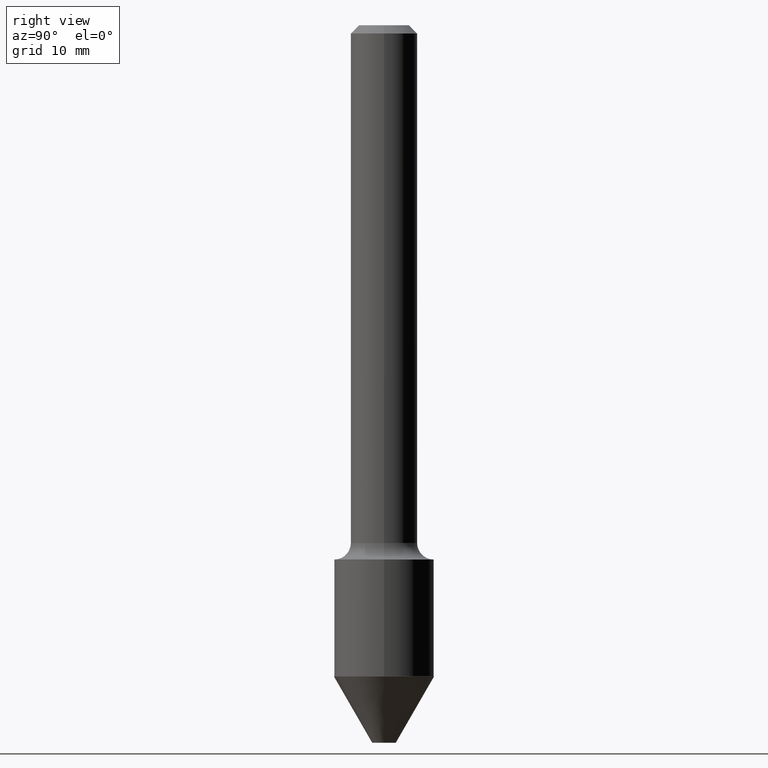
[diagram: clean part render]
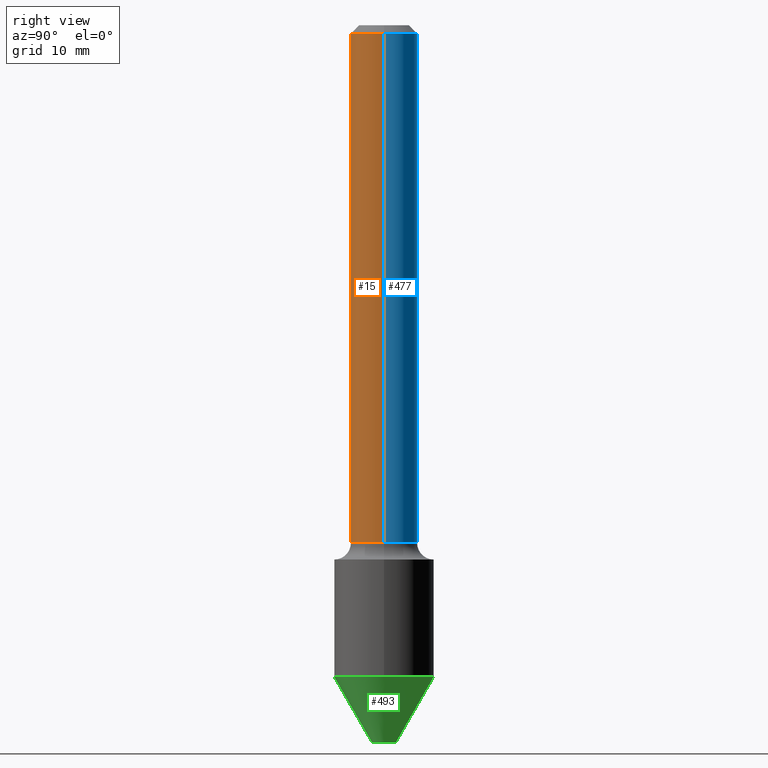
[diagram: same view with three faces highlighted in distinct colors, each labeled with its STEP entity id]
A machine part, right view with three faces highlighted in distinct colors.
Their STEP definitions:

[orange] entity #15 — the highlighted cylindrical surface (edge-blend (fillet) strip) has radius 3.175 mm, axis along (-0, 0, 1).
#15 = ADVANCED_FACE ( 'NONE', ( #330 ), #393, .T. ) ;
#19 = CARTESIAN_POINT ( 'NONE',  ( 0.1250000000000000000, -9.664964674933483956E-16, -0.03120000000000020327 ) ) ;
#22 = DIRECTION ( 'NONE',  ( -2.445468806185136597E-29, 3.491481338843145583E-15, 1.000000000000000000 ) ) ;
#28 = VERTEX_POINT ( 'NONE', #39 ) ;
#31 = CARTESIAN_POINT ( 'NONE',  ( -0.1250000000000000000, 7.639361169388764871E-16, -0.03120000000000020327 ) ) ;
#39 = CARTESIAN_POINT ( 'NONE',  ( 0.1250000000000002498, -7.648089872735909268E-15, -1.940500000000000336 ) ) ;
#40 = DIRECTION ( 'NONE',  ( -2.445468806185136597E-29, 3.491481338843145583E-15, 1.000000000000000000 ) ) ;
#74 = AXIS2_PLACEMENT_3D ( 'NONE', #481, #40, #492 ) ;
#79 = CARTESIAN_POINT ( 'NONE',  ( 7.629862675297675698E-31, -1.089342177719068517E-16, -0.03120000000000020327 ) ) ;
#99 = LINE ( 'NONE', #218, #154 ) ;
#103 = VERTEX_POINT ( 'NONE', #215 ) ;
#134 = DIRECTION ( 'NONE',  ( -2.445468806185136877E-29, 3.491481338843145188E-15, 1.000000000000000000 ) ) ;
#154 = VECTOR ( 'NONE', #134, 39.37007874015748143 ) ;
#158 = EDGE_CURVE ( 'NONE', #28, #300, #99, .T. ) ;
#171 = ORIENTED_EDGE ( 'NONE', *, *, #158, .T. ) ;
#176 = LINE ( 'NONE', #293, #276 ) ;
#210 = AXIS2_PLACEMENT_3D ( 'NONE', #79, #472, #358 ) ;
#215 = CARTESIAN_POINT ( 'NONE',  ( -0.1250000000000002498, -5.774105305238813757E-15, -1.940500000000000336 ) ) ;
#218 = CARTESIAN_POINT ( 'NONE',  ( 0.1250000000000001110, -8.728703347107842263E-16, 6.095220969744926047E-30 ) ) ;
#232 = ORIENTED_EDGE ( 'NONE', *, *, #246, .T. ) ;
#238 = EDGE_CURVE ( 'NONE', #103, #345, #176, .T. ) ;
#246 = EDGE_CURVE ( 'NONE', #103, #28, #323, .T. ) ;
#259 = DIRECTION ( 'NONE',  ( 1.000000000000000000, -6.982962677686264344E-15, 0.000000000000000000 ) ) ;
#270 = AXIS2_PLACEMENT_3D ( 'NONE', #448, #22, #259 ) ;
#276 = VECTOR ( 'NONE', #496, 39.37007874015748143 ) ;
#293 = CARTESIAN_POINT ( 'NONE',  ( -0.1250000000000001110, 8.881784197001260212E-16, -6.148668862818637832E-30 ) ) ;
#300 = VERTEX_POINT ( 'NONE', #19 ) ;
#323 = CIRCLE ( 'NONE', #270, 0.1250000000000002498 ) ;
#330 = FACE_OUTER_BOUND ( 'NONE', #428, .T. ) ;
#345 = VERTEX_POINT ( 'NONE', #31 ) ;
#358 = DIRECTION ( 'NONE',  ( 1.000000000000000000, -6.982962677686266711E-15, 0.000000000000000000 ) ) ;
#393 = CYLINDRICAL_SURFACE ( 'NONE', #74, 0.1250000000000001110 ) ;
#428 = EDGE_LOOP ( 'NONE', ( #459, #232, #171, #497 ) ) ;
#431 = CIRCLE ( 'NONE', #210, 0.1250000000000000000 ) ;
#448 = CARTESIAN_POINT ( 'NONE',  ( 4.745432218402258405E-29, -6.775219538025124352E-15, -1.940500000000000336 ) ) ;
#459 = ORIENTED_EDGE ( 'NONE', *, *, #238, .F. ) ;
#472 = DIRECTION ( 'NONE',  ( -2.445468806185136597E-29, 3.491481338843145583E-15, 1.000000000000000000 ) ) ;
#474 = EDGE_CURVE ( 'NONE', #345, #300, #431, .T. ) ;
#481 = CARTESIAN_POINT ( 'NONE',  ( 0.000000000000000000, 0.000000000000000000, 0.000000000000000000 ) ) ;
#492 = DIRECTION ( 'NONE',  ( 1.000000000000000000, -6.982962677686267499E-15, 4.876176775795936353E-29 ) ) ;
#496 = DIRECTION ( 'NONE',  ( -2.445468806185136877E-29, 3.491481338843145188E-15, 1.000000000000000000 ) ) ;
#497 = ORIENTED_EDGE ( 'NONE', *, *, #474, .F. ) ;

[blue] entity #477 — the highlighted cylindrical surface (edge-blend (fillet) strip) has radius 3.175 mm, axis along (-0, 0, 1).
#7 = CIRCLE ( 'NONE', #280, 0.1250000000000002498 ) ;
#19 = CARTESIAN_POINT ( 'NONE',  ( 0.1250000000000000000, -9.664964674933483956E-16, -0.03120000000000020327 ) ) ;
#24 = DIRECTION ( 'NONE',  ( 1.000000000000000000, -6.982962677686264344E-15, 0.000000000000000000 ) ) ;
#28 = VERTEX_POINT ( 'NONE', #39 ) ;
#31 = CARTESIAN_POINT ( 'NONE',  ( -0.1250000000000000000, 7.639361169388764871E-16, -0.03120000000000020327 ) ) ;
#35 = AXIS2_PLACEMENT_3D ( 'NONE', #338, #344, #304 ) ;
#39 = CARTESIAN_POINT ( 'NONE',  ( 0.1250000000000002498, -7.648089872735909268E-15, -1.940500000000000336 ) ) ;
#99 = LINE ( 'NONE', #218, #154 ) ;
#103 = VERTEX_POINT ( 'NONE', #215 ) ;
#119 = FACE_OUTER_BOUND ( 'NONE', #306, .T. ) ;
#134 = DIRECTION ( 'NONE',  ( -2.445468806185136877E-29, 3.491481338843145188E-15, 1.000000000000000000 ) ) ;
#145 = ORIENTED_EDGE ( 'NONE', *, *, #161, .T. ) ;
#154 = VECTOR ( 'NONE', #134, 39.37007874015748143 ) ;
#158 = EDGE_CURVE ( 'NONE', #28, #300, #99, .T. ) ;
#161 = EDGE_CURVE ( 'NONE', #28, #103, #7, .T. ) ;
#162 = CYLINDRICAL_SURFACE ( 'NONE', #454, 0.1250000000000001110 ) ;
#176 = LINE ( 'NONE', #293, #276 ) ;
#215 = CARTESIAN_POINT ( 'NONE',  ( -0.1250000000000002498, -5.774105305238813757E-15, -1.940500000000000336 ) ) ;
#217 = EDGE_CURVE ( 'NONE', #300, #345, #301, .T. ) ;
#218 = CARTESIAN_POINT ( 'NONE',  ( 0.1250000000000001110, -8.728703347107842263E-16, 6.095220969744926047E-30 ) ) ;
#224 = ORIENTED_EDGE ( 'NONE', *, *, #238, .T. ) ;
#237 = DIRECTION ( 'NONE',  ( 1.000000000000000000, -6.982962677686267499E-15, 4.876176775795936353E-29 ) ) ;
#238 = EDGE_CURVE ( 'NONE', #103, #345, #176, .T. ) ;
#269 = ORIENTED_EDGE ( 'NONE', *, *, #158, .F. ) ;
#276 = VECTOR ( 'NONE', #496, 39.37007874015748143 ) ;
#280 = AXIS2_PLACEMENT_3D ( 'NONE', #299, #335, #24 ) ;
#293 = CARTESIAN_POINT ( 'NONE',  ( -0.1250000000000001110, 8.881784197001260212E-16, -6.148668862818637832E-30 ) ) ;
#299 = CARTESIAN_POINT ( 'NONE',  ( 4.745432218402258405E-29, -6.775219538025124352E-15, -1.940500000000000336 ) ) ;
#300 = VERTEX_POINT ( 'NONE', #19 ) ;
#301 = CIRCLE ( 'NONE', #35, 0.1250000000000000000 ) ;
#304 = DIRECTION ( 'NONE',  ( 1.000000000000000000, -6.982962677686266711E-15, 0.000000000000000000 ) ) ;
#306 = EDGE_LOOP ( 'NONE', ( #145, #224, #377, #269 ) ) ;
#321 = CARTESIAN_POINT ( 'NONE',  ( 0.000000000000000000, 0.000000000000000000, 0.000000000000000000 ) ) ;
#335 = DIRECTION ( 'NONE',  ( -2.445468806185136597E-29, 3.491481338843145583E-15, 1.000000000000000000 ) ) ;
#338 = CARTESIAN_POINT ( 'NONE',  ( 7.629862675297675698E-31, -1.089342177719068517E-16, -0.03120000000000020327 ) ) ;
#344 = DIRECTION ( 'NONE',  ( -2.445468806185136597E-29, 3.491481338843145583E-15, 1.000000000000000000 ) ) ;
#345 = VERTEX_POINT ( 'NONE', #31 ) ;
#377 = ORIENTED_EDGE ( 'NONE', *, *, #217, .F. ) ;
#433 = DIRECTION ( 'NONE',  ( -2.445468806185136597E-29, 3.491481338843145583E-15, 1.000000000000000000 ) ) ;
#454 = AXIS2_PLACEMENT_3D ( 'NONE', #321, #433, #237 ) ;
#477 = ADVANCED_FACE ( 'NONE', ( #119 ), #162, .T. ) ;
#496 = DIRECTION ( 'NONE',  ( -2.445468806185136877E-29, 3.491481338843145188E-15, 1.000000000000000000 ) ) ;

[green] entity #493 — the highlighted conical surface has half-angle 30 deg.
#6 = DIRECTION ( 'NONE',  ( -2.493412854807490386E-29, 3.422822732410152858E-15, 1.000000000000000000 ) ) ;
#17 = VERTEX_POINT ( 'NONE', #435 ) ;
#37 = AXIS2_PLACEMENT_3D ( 'NONE', #61, #96, #131 ) ;
#46 = VECTOR ( 'NONE', #186, 39.37007874015748854 ) ;
#61 = CARTESIAN_POINT ( 'NONE',  ( 5.914187489138859370E-29, -8.604910211756336085E-15, -2.441450709113889506 ) ) ;
#84 = CARTESIAN_POINT ( 'NONE',  ( 1.332267629550246224E-15, 0.1874999999999913125, -2.441450709113889950 ) ) ;
#96 = DIRECTION ( 'NONE',  ( -2.493412854807490386E-29, 3.422822732410152858E-15, 1.000000000000000000 ) ) ;
#102 = CARTESIAN_POINT ( 'NONE',  ( 6.533923486087575718E-29, -9.455650374725741126E-15, -2.690000000000000391 ) ) ;
#123 = DIRECTION ( 'NONE',  ( -6.982962677686265922E-15, -1.000000000000000000, 2.913971193241881950E-15 ) ) ;
#131 = DIRECTION ( 'NONE',  ( -6.982962677686265922E-15, -1.000000000000000000, 2.913971193241881950E-15 ) ) ;
#143 = ORIENTED_EDGE ( 'NONE', *, *, #258, .F. ) ;
#165 = LINE ( 'NONE', #84, #470 ) ;
#166 = CONICAL_SURFACE ( 'NONE', #234, 0.1874999999999999167, 0.5235987755983387837 ) ;
#179 = ORIENTED_EDGE ( 'NONE', *, *, #240, .F. ) ;
#186 = DIRECTION ( 'NONE',  ( -3.491481338843396046E-15, -0.5000000000000315303, 0.8660254037844203889 ) ) ;
#192 = EDGE_CURVE ( 'NONE', #455, #17, #504, .T. ) ;
#230 = VERTEX_POINT ( 'NONE', #417 ) ;
#234 = AXIS2_PLACEMENT_3D ( 'NONE', #236, #6, #123 ) ;
#236 = CARTESIAN_POINT ( 'NONE',  ( 5.914187489138859370E-29, -8.604910211756336085E-15, -2.441450709113889506 ) ) ;
#240 = EDGE_CURVE ( 'NONE', #455, #230, #458, .T. ) ;
#244 = CARTESIAN_POINT ( 'NONE',  ( -3.072503578181288162E-16, -0.04400000000000924005, -2.690000000000000391 ) ) ;
#258 = EDGE_CURVE ( 'NONE', #230, #340, #322, .T. ) ;
#288 = DIRECTION ( 'NONE',  ( 3.552713678800723388E-15, 0.5000000000000374145, 0.8660254037844169472 ) ) ;
#322 = CIRCLE ( 'NONE', #37, 0.1874999999999999167 ) ;
#336 = EDGE_LOOP ( 'NONE', ( #461, #429, #143, #179 ) ) ;
#340 = VERTEX_POINT ( 'NONE', #510 ) ;
#373 = DIRECTION ( 'NONE',  ( -2.493412854807490386E-29, 3.422822732410152858E-15, 1.000000000000000000 ) ) ;
#389 = EDGE_CURVE ( 'NONE', #17, #340, #165, .T. ) ;
#412 = DIRECTION ( 'NONE',  ( -6.982962677686265133E-15, -1.000000000000000000, 0.000000000000000000 ) ) ;
#417 = CARTESIAN_POINT ( 'NONE',  ( -1.309305502066115646E-15, -0.1875000000000085765, -2.441450709113888617 ) ) ;
#429 = ORIENTED_EDGE ( 'NONE', *, *, #389, .T. ) ;
#435 = CARTESIAN_POINT ( 'NONE',  ( 8.224532166423771421E-16, 0.04399999999999032463, -2.690000000000000391 ) ) ;
#455 = VERTEX_POINT ( 'NONE', #244 ) ;
#458 = LINE ( 'NONE', #503, #46 ) ;
#461 = ORIENTED_EDGE ( 'NONE', *, *, #192, .T. ) ;
#470 = VECTOR ( 'NONE', #288, 39.37007874015748854 ) ;
#478 = FACE_OUTER_BOUND ( 'NONE', #336, .T. ) ;
#493 = ADVANCED_FACE ( 'NONE', ( #478 ), #166, .T. ) ;
#503 = CARTESIAN_POINT ( 'NONE',  ( -1.309305502066115055E-15, -0.1875000000000085210, -2.441450709113888617 ) ) ;
#504 = CIRCLE ( 'NONE', #512, 0.04399999999999978234 ) ;
#510 = CARTESIAN_POINT ( 'NONE',  ( 1.332267629550245633E-15, 0.1874999999999912292, -2.441450709113889950 ) ) ;
#512 = AXIS2_PLACEMENT_3D ( 'NONE', #102, #373, #412 ) ;